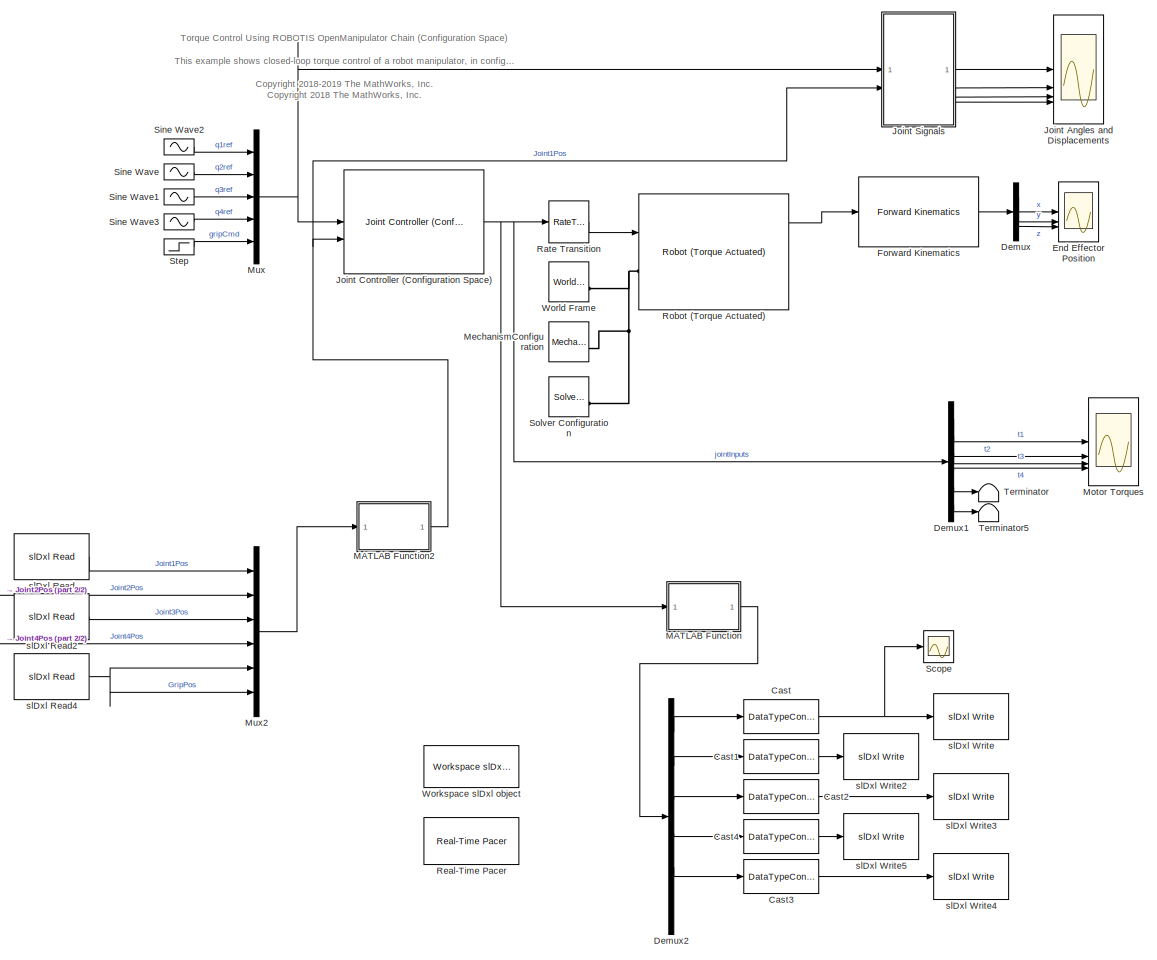
[diagram: root canvas - part 1/2, most of the canvas]
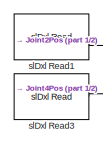
[diagram: root canvas - part 2/2, middle left region]
MODEL slx_fe949c0e2eca
KIND model
CONFIG AbsTol = auto
CONFIG EnableMultiTasking = off
CONFIG FixedStep = auto
CONFIG MaxStep = auto
CONFIG MinStep = auto
CONFIG PostLoadFcn = % Insert Communication Stuff Here
CONFIG PreLoadFcn = openManipulatorParameters;
CONFIG RelTol = 1e-3
CONFIG SampleTimeConstraint = Unconstrained
CONFIG SolverName = VariableStepAuto
CONFIG StartFcn = myDxl.doEnableTorque(11);\nmyDxl.doEnableTorque(12);\nmyDxl.doEnableTorque(13);\nmyDxl.doEnableTorque(14);\nmyDxl.doEnableTorque(15);
CONFIG StartTime = 0.0
CONFIG StopFcn = myDxl.doDisableTorque(11);\nmyDxl.doDisableTorque(12);\nmyDxl.doDisableTorque(13);\nmyDxl.doDisableTorque(14);\nmyDxl.doDisableTorque(15);
CONFIG StopTime = 20
BLOCK [DataTypeConversion] Cast
  OutDataTypeStr = uint16
  RndMeth = Floor
  SaturateOnIntegerOverflow = off
BLOCK [DataTypeConversion] Cast1
  OutDataTypeStr = uint16
  RndMeth = Floor
  SaturateOnIntegerOverflow = off
BLOCK [DataTypeConversion] Cast2
  OutDataTypeStr = uint16
  RndMeth = Floor
  SaturateOnIntegerOverflow = off
BLOCK [DataTypeConversion] Cast3
  OutDataTypeStr = uint16
  RndMeth = Floor
  SaturateOnIntegerOverflow = off
BLOCK [DataTypeConversion] Cast4
  OutDataTypeStr = uint16
  RndMeth = Floor
  SaturateOnIntegerOverflow = off
BLOCK [Demux] Demux
  Commented = on
  Outputs = 3
BLOCK [Demux] Demux1
  Commented = on
  Outputs = 6
BLOCK [Demux] Demux2
  Outputs = 6
BLOCK [Scope] End Effector Position
  Commented = on
  Floating = off
  NumInputPorts = 3
  ScopeSpecificationString = Simulink.scopes.TimeScopeBlockCfg('CurrentConfiguration', extmgr.ConfigurationSet(extmgr.Configuration('Core','General UI',true),extmgr.Configuration('Core','Source UI',true),extmgr.Configuration('Sources','WiredSimulink',true,'DataLoggingVariableName','ScopeData1'),extmgr.Configuration('Visuals','Time Domain',true,'SerializedDisplays',{struct('MinYLimReal','-0.15053','MaxYLimReal','0.32785','YLab...<+2731ch>
BLOCK [Reference] Forward Kinematics  REF=OpenManipulatorLib/Forward Kinematics
  Commented = on
  SourceBlock = OpenManipulatorLib/Forward Kinematics
  SourceType = SubSystem
BLOCK [Scope] Joint Angles and Displacements
  Floating = off
  NumInputPorts = 4
  ScopeSpecificationString = Simulink.scopes.TimeScopeBlockCfg('CurrentConfiguration', extmgr.ConfigurationSet(extmgr.Configuration('Core','General UI',true),extmgr.Configuration('Core','Source UI',true),extmgr.Configuration('Sources','WiredSimulink',true),extmgr.Configuration('Visuals','Time Domain',true,'SerializedDisplays',{struct('MinYLimReal','-0.44557','MaxYLimReal','2.37661','YLabelReal','','MinYLimMag','0.00000','MaxY...<+3473ch>
BLOCK [Reference] Joint Controller (Configuration Space)  REF=OpenManipulatorLib/Joint Controller (Configuration Space)
  SourceBlock = OpenManipulatorLib/Joint Controller (Configuration Space)
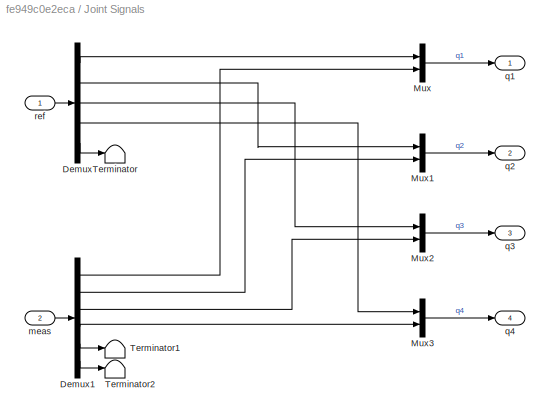
BLOCK [SubSystem] Joint Signals
BLOCK [Demux] Joint Signals/Demux
  Outputs = 5
BLOCK [Demux] Joint Signals/Demux1
  Outputs = 6
BLOCK [Mux] Joint Signals/Mux
  DisplayOption = bar
  Inputs = 2
BLOCK [Mux] Joint Signals/Mux1
  DisplayOption = bar
  Inputs = 2
BLOCK [Mux] Joint Signals/Mux2
  DisplayOption = bar
  Inputs = 2
BLOCK [Mux] Joint Signals/Mux3
  DisplayOption = bar
  Inputs = 2
BLOCK [Terminator] Joint Signals/Terminator
BLOCK [Terminator] Joint Signals/Terminator1
BLOCK [Terminator] Joint Signals/Terminator2
BLOCK [Inport] Joint Signals/meas
  Port = 2
BLOCK [Outport] Joint Signals/q1
  VectorParamsAs1DForOutWhenUnconnected = off
BLOCK [Outport] Joint Signals/q2
  Port = 2
  VectorParamsAs1DForOutWhenUnconnected = off
BLOCK [Outport] Joint Signals/q3
  Port = 3
  VectorParamsAs1DForOutWhenUnconnected = off
BLOCK [Outport] Joint Signals/q4
  Port = 4
  VectorParamsAs1DForOutWhenUnconnected = off
BLOCK [Inport] Joint Signals/ref
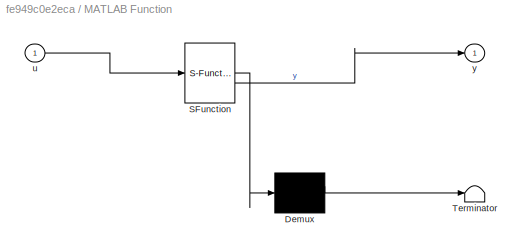
BLOCK [SubSystem] MATLAB Function
  ErrorFcn = Stateflow.Translate.translate
  LibrarySourceBlock = simulink/User-Defined\nFunctions/MATLAB Function
  PermitHierarchicalResolution = ExplicitOnly
  SFBlockType = MATLAB Function
  TreatAsAtomicUnit = on
BLOCK [Demux] MATLAB Function/ Demux 
  Outputs = 1
BLOCK [S-Function] MATLAB Function/ SFunction 
  EnableBusSupport = on
  FunctionName = sf_sfun
  PortCounts = [1 2]
  SFcnIsStateOwnerBlock = off
  SFunctionDeploymentMode = off
  Tag = Stateflow S-Function 2
BLOCK [Terminator] MATLAB Function/ Terminator 
BLOCK [Inport] MATLAB Function/u
BLOCK [Outport] MATLAB Function/y
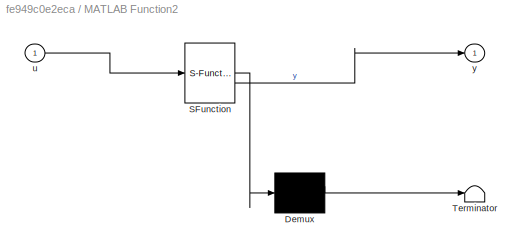
BLOCK [SubSystem] MATLAB Function2
  ErrorFcn = Stateflow.Translate.translate
  LibrarySourceBlock = simulink/User-Defined\nFunctions/MATLAB Function
  PermitHierarchicalResolution = ExplicitOnly
  SFBlockType = MATLAB Function
  TreatAsAtomicUnit = on
BLOCK [Demux] MATLAB Function2/ Demux 
  Outputs = 1
BLOCK [S-Function] MATLAB Function2/ SFunction 
  EnableBusSupport = on
  FunctionName = sf_sfun
  PortCounts = [1 2]
  SFcnIsStateOwnerBlock = off
  SFunctionDeploymentMode = off
  Tag = Stateflow S-Function 3
BLOCK [Terminator] MATLAB Function2/ Terminator 
BLOCK [Inport] MATLAB Function2/u
BLOCK [Outport] MATLAB Function2/y
BLOCK [Reference] MechanismConfiguration  REF=sm_lib/Utilities/Mechanism
Configuration
  Commented = on
  SourceBlock = sm_lib/Utilities/Mechanism\nConfiguration
  SourceType = Mechanism\nConfiguration
BLOCK [Scope] Motor Torques
  Commented = on
  Floating = off
  NumInputPorts = 4
  ScopeSpecificationString = Simulink.scopes.TimeScopeBlockCfg('CurrentConfiguration', extmgr.ConfigurationSet(extmgr.Configuration('Core','General UI',true),extmgr.Configuration('Core','Source UI',true),extmgr.Configuration('Sources','WiredSimulink',true,'DataLoggingVariableName','ScopeData2'),extmgr.Configuration('Visuals','Time Domain',true,'SerializedDisplays',{struct('MinYLimReal','-2.5','MaxYLimReal','2.5','YLabelReal',...<+1476ch>
BLOCK [Mux] Mux
  DisplayOption = bar
  Inputs = 5
BLOCK [Mux] Mux2
  DisplayOption = bar
  Inputs = 6
BLOCK [RateTransition] Rate Transition
  Commented = on
BLOCK [Reference] Real-Time Pacer  REF=slDxl_lib/Real-Time Pacer
  SourceBlock = slDxl_lib/Real-Time Pacer
  SourceType = RealTime_Pacer
BLOCK [Reference] Robot (Torque Actuated)  REF=OpenManipulatorLib/Robot 
(Torque Actuated)
  Commented = on
  SourceBlock = OpenManipulatorLib/Robot \n(Torque Actuated)
BLOCK [Scope] Scope
  Floating = off
  NumInputPorts = 1
  ScopeSpecificationString = Simulink.scopes.TimeScopeBlockCfg('CurrentConfiguration', extmgr.ConfigurationSet(extmgr.Configuration('Core','General UI',true),extmgr.Configuration('Core','Source UI',true),extmgr.Configuration('Sources','WiredSimulink',true,'DataLoggingVariableName','ScopeData1'),extmgr.Configuration('Visuals','Time Domain',true,'SerializedDisplays',{struct('MinYLimReal','322.25','MaxYLimReal','789.75','YLabelR...<+1379ch>
BLOCK [Sin] Sine Wave
  Amplitude = pi/4
  Frequency = 0.6
  SampleTime = TsCtrl
BLOCK [Sin] Sine Wave1
  Amplitude = pi/4
  Frequency = 1.5
  SampleTime = TsCtrl
BLOCK [Sin] Sine Wave2
  Amplitude = 2*pi/3
  Frequency = 0.4
  SampleTime = TsCtrl
BLOCK [Sin] Sine Wave3
  Amplitude = pi/3
  SampleTime = TsCtrl
BLOCK [Reference] Solver Configuration  REF=nesl_utility/Solver
Configuration
  Commented = on
  SourceBlock = nesl_utility/Solver\nConfiguration
  SourceType = Solver\nConfiguration
BLOCK [Step] Step
  SampleTime = TsCtrl
  Time = 5
BLOCK [Terminator] Terminator
  Commented = on
BLOCK [Terminator] Terminator5
  Commented = on
BLOCK [Reference] Workspace slDxl object  REF=slDxl_lib/Workspace slDxl object
  SourceBlock = slDxl_lib/Workspace slDxl object
  SourceType = slDxl Setup
BLOCK [Reference] World Frame  REF=sm_lib/Frames and
Transforms/World Frame
  Commented = on
  SourceBlock = sm_lib/Frames and\nTransforms/World Frame
  SourceType = World Frame
BLOCK [Reference] slDxl Read  REF=slDxl_lib/slDxl Read
  SourceBlock = slDxl_lib/slDxl Read
BLOCK [Reference] slDxl Read1  REF=slDxl_lib/slDxl Read
  SourceBlock = slDxl_lib/slDxl Read
BLOCK [Reference] slDxl Read2  REF=slDxl_lib/slDxl Read
  SourceBlock = slDxl_lib/slDxl Read
BLOCK [Reference] slDxl Read3  REF=slDxl_lib/slDxl Read
  SourceBlock = slDxl_lib/slDxl Read
BLOCK [Reference] slDxl Read4  REF=slDxl_lib/slDxl Read
  SourceBlock = slDxl_lib/slDxl Read
BLOCK [Reference] slDxl Write  REF=slDxl_lib/slDxl Write
  SourceBlock = slDxl_lib/slDxl Write
BLOCK [Reference] slDxl Write2  REF=slDxl_lib/slDxl Write
  Commented = on
  SourceBlock = slDxl_lib/slDxl Write
BLOCK [Reference] slDxl Write3  REF=slDxl_lib/slDxl Write
  Commented = on
  SourceBlock = slDxl_lib/slDxl Write
BLOCK [Reference] slDxl Write4  REF=slDxl_lib/slDxl Write
  Commented = on
  SourceBlock = slDxl_lib/slDxl Write
BLOCK [Reference] slDxl Write5  REF=slDxl_lib/slDxl Write
  Commented = on
  SourceBlock = slDxl_lib/slDxl Write
ANNOTATION (root): Torque Control Using ROBOTIS OpenManipulator Chain (Configuration Space) This example shows closed-loop torque control of a robot manipulator, in configuration space, to track a set of reference joint angles and positions. <copyright redacted>
LINE Cast1:1 -> slDxl Write2:1
LINE Cast2:1 -> slDxl Write3:1
LINE Cast3:1 -> slDxl Write4:1
LINE Cast4:1 -> slDxl Write5:1
NET Cast:1 -> Scope:1, slDxl Write:1
LINE Demux1:1 -> Motor Torques:1
LINE Demux1:2 -> Motor Torques:2
LINE Demux1:3 -> Motor Torques:3
LINE Demux1:4 -> Motor Torques:4
LINE Demux1:5 -> Terminator:1
LINE Demux1:6 -> Terminator5:1
LINE Demux2:1 -> Cast:1
LINE Demux2:2 -> Cast1:1
LINE Demux2:3 -> Cast2:1
LINE Demux2:4 -> Cast4:1
LINE Demux2:5 -> Cast3:1
LINE Demux:1 -> End Effector Position:1
LINE Demux:2 -> End Effector Position:2
LINE Demux:3 -> End Effector Position:3
LINE Forward Kinematics:1 -> Demux:1
NET Joint Controller (Configuration Space):1 -> Demux1:1, MATLAB Function:1, Rate Transition:1
LINE Joint Signals/Demux1:1 -> Joint Signals/Mux:2
LINE Joint Signals/Demux1:2 -> Joint Signals/Mux1:2
LINE Joint Signals/Demux1:3 -> Joint Signals/Mux2:2
LINE Joint Signals/Demux1:4 -> Joint Signals/Mux3:2
LINE Joint Signals/Demux1:5 -> Joint Signals/Terminator1:1
LINE Joint Signals/Demux1:6 -> Joint Signals/Terminator2:1
LINE Joint Signals/Demux:1 -> Joint Signals/Mux:1
LINE Joint Signals/Demux:2 -> Joint Signals/Mux1:1
LINE Joint Signals/Demux:3 -> Joint Signals/Mux2:1
LINE Joint Signals/Demux:4 -> Joint Signals/Mux3:1
LINE Joint Signals/Demux:5 -> Joint Signals/Terminator:1
LINE Joint Signals/Mux1:1 -> Joint Signals/q2:1
LINE Joint Signals/Mux2:1 -> Joint Signals/q3:1
LINE Joint Signals/Mux3:1 -> Joint Signals/q4:1
LINE Joint Signals/Mux:1 -> Joint Signals/q1:1
LINE Joint Signals/meas:1 -> Joint Signals/Demux1:1
LINE Joint Signals/ref:1 -> Joint Signals/Demux:1
LINE Joint Signals:1 -> Joint Angles and Displacements:1
LINE Joint Signals:2 -> Joint Angles and Displacements:2
LINE Joint Signals:3 -> Joint Angles and Displacements:3
LINE Joint Signals:4 -> Joint Angles and Displacements:4
NET MATLAB Function2:1 -> Joint Controller (Configuration Space):2, Joint Signals:2
LINE MATLAB Function:1 -> Demux2:1
LINE Mux2:1 -> MATLAB Function2:1
NET Mux:1 -> Joint Controller (Configuration Space):1, Joint Signals:1
LINE Rate Transition:1 -> Robot (Torque Actuated):1
LINE Robot (Torque Actuated):1 -> Forward Kinematics:1
LINE Sine Wave1:1 -> Mux:3
LINE Sine Wave2:1 -> Mux:1
LINE Sine Wave3:1 -> Mux:4
LINE Sine Wave:1 -> Mux:2
LINE Step:1 -> Mux:5
LINE slDxl Read1:1 -> Mux2:2
LINE slDxl Read2:1 -> Mux2:3
LINE slDxl Read3:1 -> Mux2:4
NET slDxl Read4:1 -> Mux2:5, Mux2:6
LINE slDxl Read:1 -> Mux2:1
PNET net1: MechanismConfiguration:RConn1 -- Robot (Torque Actuated):LConn1 -- Solver Configuration:RConn1 -- World Frame:RConn1
note: NET lines group one-source signal fan-out (src -> all destinations, sorted); 1:1 wires keep LINE; PNET lines group multi-terminal physical nets as a canonical sorted terminal list (undirected conserving connections); 2-terminal nets keep the pairwise PLINE form
CHART MATLAB Function2 states=1 transitions=1
  STATE_LABEL 'eML_blk_kernel()'
  STATE_LABEL 'SCRIPT:\nfunction y = fcn(u)\ny = (0.001534355386369.*u) - 3.14;\n'
CHART MATLAB Function states=1 transitions=1
  STATE_LABEL 'eML_blk_kernel()'
  STATE_LABEL 'SCRIPT:\nfunction y = converter(u)\n    current_A = 0.5714 .* u;\n    y = current_A .* 1000 ./ 2.69;'
CHART  states=0 transitions=0
CHART  states=0 transitions=0
